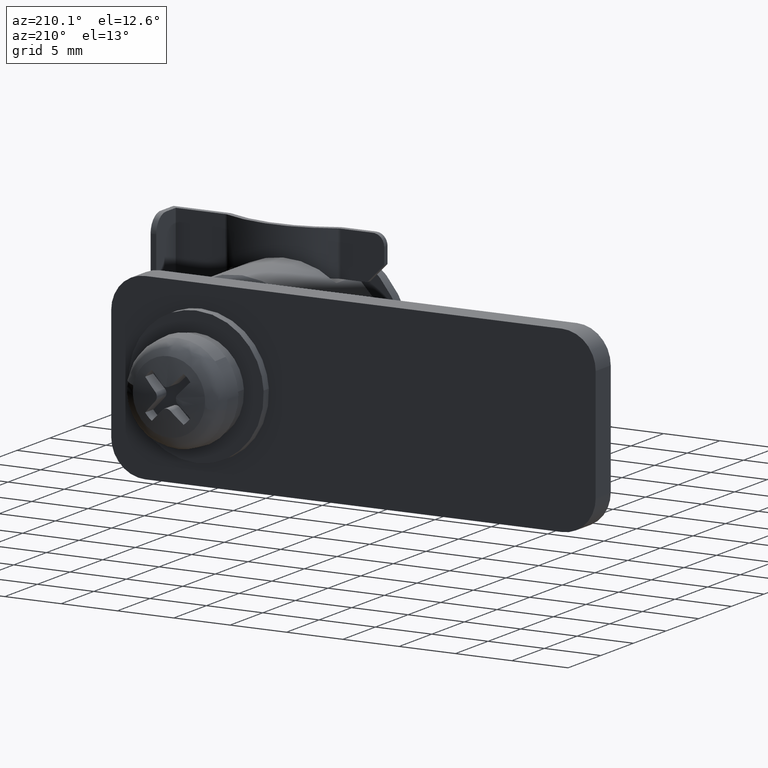
[diagram: clean part render]
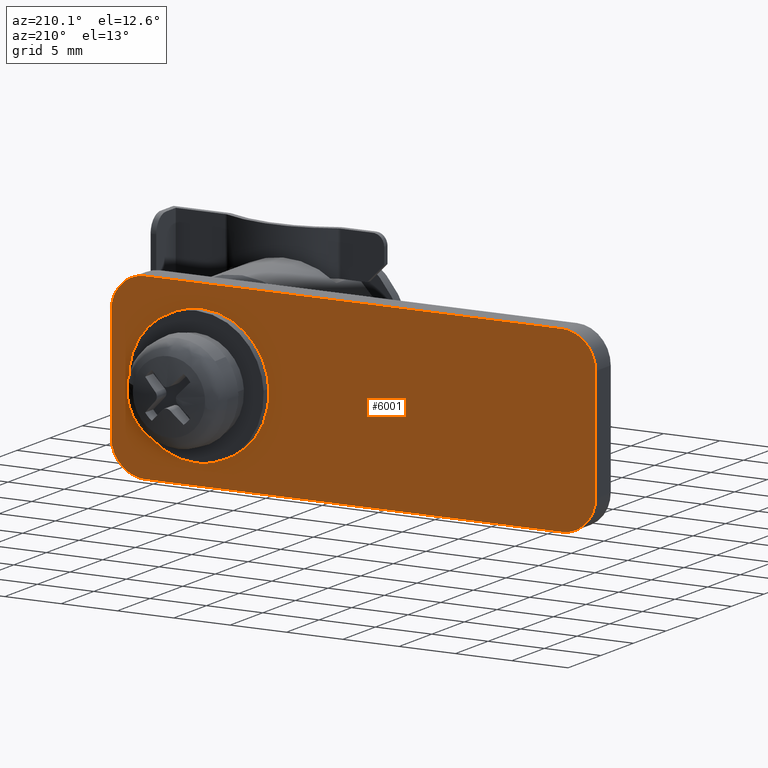
[diagram: same view with one face highlighted and labeled with its STEP entity id]
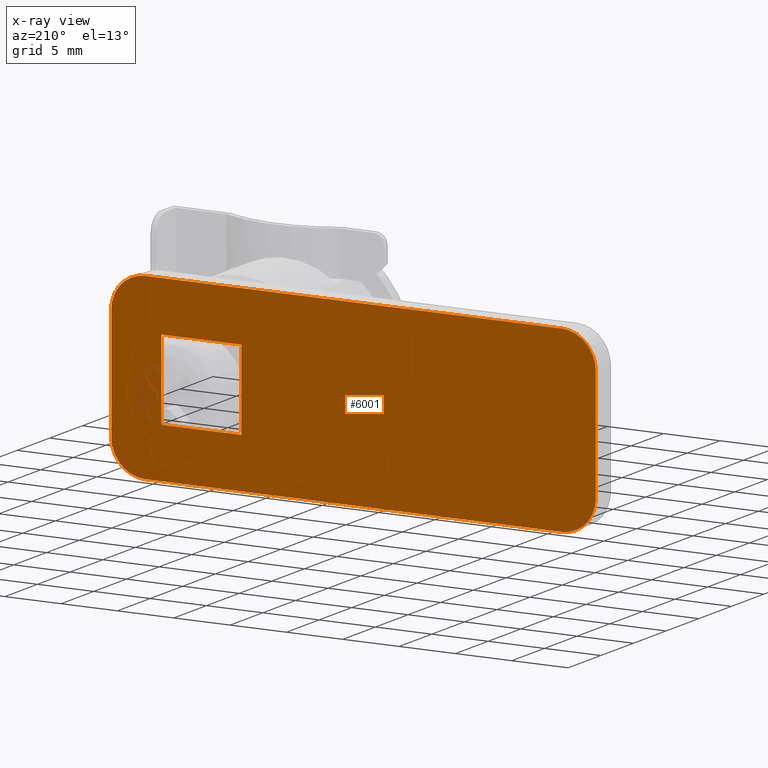
[diagram: x-ray of the same camera — body ghosted, the highlighted face saturated]
A machine part, auxiliary view. The second image highlights one B-rep face of the part: STEP entity #6001.
The next image is the same camera in x-ray: the body ghosted, the highlighted face saturated — about 1% of this face is hidden behind the body in this view.
In plain terms, the highlighted face is a freeform B-spline surface patch.
Its self-contained STEP definition (entity closure, byte-faithful):
#5876=CARTESIAN_POINT('',(-37.147849916657663,19.899999999999999,8.799199968988896));
#5877=CARTESIAN_POINT('',(10.147851070007530,19.899999999999999,8.799199968988896));
#5878=CARTESIAN_POINT('',(-37.147849916657663,19.899999999999999,-8.799200398142338));
#5879=CARTESIAN_POINT('',(10.147851070007530,19.899999999999999,-8.799200398142338));
#5880=B_SPLINE_SURFACE_WITH_KNOTS('',1,1,((#5876,#5878),(#5877,#5879)),.UNSPECIFIED.,.F.,.F.,.U.,(2,2),(2,2),(0.0,47.295700986665203),(0.0,17.598400367131230),.UNSPECIFIED.);
#5881=CARTESIAN_POINT('',(-32.0,19.899999999999999,-8.0));
#5882=VERTEX_POINT('',#5881);
#5883=CARTESIAN_POINT('',(5.0,19.899999999999999,-8.0));
#5884=VERTEX_POINT('',#5883);
#5885=CARTESIAN_POINT('',(-32.0,19.899999999999999,-8.0));
#5886=CARTESIAN_POINT('',(5.0,19.899999999999999,-8.0));
#5887=QUASI_UNIFORM_CURVE('',1,(#5885,#5886),.UNSPECIFIED.,.F.,.U.);
#5888=EDGE_CURVE('',#5882,#5884,#5887,.T.);
#5889=ORIENTED_EDGE('',*,*,#5888,.F.);
#5890=CARTESIAN_POINT('',(-35.0,19.899999999999999,-5.0));
#5891=VERTEX_POINT('',#5890);
#5892=CARTESIAN_POINT('',(-35.0,19.899999999999999,-5.0));
#5893=CARTESIAN_POINT('',(-34.999999999999993,19.900000000000006,-8.0));
#5894=CARTESIAN_POINT('',(-32.0,19.899999999999999,-8.0));
#5902=(BOUNDED_CURVE()B_SPLINE_CURVE(2,(#5892,#5893,#5894),.UNSPECIFIED.,.F.,.U.)CURVE()GEOMETRIC_REPRESENTATION_ITEM()QUASI_UNIFORM_CURVE()RATIONAL_B_SPLINE_CURVE((1.0,0.707106781186548,1.0))REPRESENTATION_ITEM(''));
#5903=EDGE_CURVE('',#5891,#5882,#5902,.T.);
#5904=ORIENTED_EDGE('',*,*,#5903,.F.);
#5905=CARTESIAN_POINT('',(-35.0,19.899999999999999,5.000001151917320));
#5906=VERTEX_POINT('',#5905);
#5907=CARTESIAN_POINT('',(-35.0,19.899999999999999,5.000001151917320));
#5908=CARTESIAN_POINT('',(-35.0,19.899999999999999,-5.0));
#5909=QUASI_UNIFORM_CURVE('',1,(#5907,#5908),.UNSPECIFIED.,.F.,.U.);
#5910=EDGE_CURVE('',#5906,#5891,#5909,.T.);
#5911=ORIENTED_EDGE('',*,*,#5910,.F.);
#5912=CARTESIAN_POINT('',(-32.0,19.899999999999999,8.0));
#5913=VERTEX_POINT('',#5912);
#5914=CARTESIAN_POINT('',(-32.0,19.899999999999999,8.0));
#5915=CARTESIAN_POINT('',(-34.999998848082896,19.900000000000006,8.0));
#5916=CARTESIAN_POINT('',(-35.0,19.899999999999999,5.000001151917320));
#5924=(BOUNDED_CURVE()B_SPLINE_CURVE(2,(#5914,#5915,#5916),.UNSPECIFIED.,.F.,.U.)CURVE()GEOMETRIC_REPRESENTATION_ITEM()QUASI_UNIFORM_CURVE()RATIONAL_B_SPLINE_CURVE((1.0,0.707106916941292,1.0))REPRESENTATION_ITEM(''));
#5925=EDGE_CURVE('',#5913,#5906,#5924,.T.);
#5926=ORIENTED_EDGE('',*,*,#5925,.F.);
#5927=CARTESIAN_POINT('',(5.0,19.899999999999999,8.0));
#5928=VERTEX_POINT('',#5927);
#5929=CARTESIAN_POINT('',(5.0,19.899999999999999,8.0));
#5930=CARTESIAN_POINT('',(-32.0,19.899999999999999,8.0));
#5931=QUASI_UNIFORM_CURVE('',1,(#5929,#5930),.UNSPECIFIED.,.F.,.U.);
#5932=EDGE_CURVE('',#5928,#5913,#5931,.T.);
#5933=ORIENTED_EDGE('',*,*,#5932,.F.);
#5934=CARTESIAN_POINT('',(8.0,19.899999999999999,5.0));
#5935=VERTEX_POINT('',#5934);
#5936=CARTESIAN_POINT('',(8.0,19.899999999999999,5.0));
#5937=CARTESIAN_POINT('',(8.0,19.900000000000006,8.0));
#5938=CARTESIAN_POINT('',(5.0,19.899999999999999,8.0));
#5946=(BOUNDED_CURVE()B_SPLINE_CURVE(2,(#5936,#5937,#5938),.UNSPECIFIED.,.F.,.U.)CURVE()GEOMETRIC_REPRESENTATION_ITEM()QUASI_UNIFORM_CURVE()RATIONAL_B_SPLINE_CURVE((1.0,0.707106781186548,1.0))REPRESENTATION_ITEM(''));
#5947=EDGE_CURVE('',#5935,#5928,#5946,.T.);
#5948=ORIENTED_EDGE('',*,*,#5947,.F.);
#5949=CARTESIAN_POINT('',(8.0,19.899999999999999,-5.0));
#5950=VERTEX_POINT('',#5949);
#5951=CARTESIAN_POINT('',(8.0,19.899999999999999,-5.0));
#5952=CARTESIAN_POINT('',(8.0,19.899999999999999,5.0));
#5953=QUASI_UNIFORM_CURVE('',1,(#5951,#5952),.UNSPECIFIED.,.F.,.U.);
#5954=EDGE_CURVE('',#5950,#5935,#5953,.T.);
#5955=ORIENTED_EDGE('',*,*,#5954,.F.);
#5956=CARTESIAN_POINT('',(5.0,19.899999999999999,-8.0));
#5957=CARTESIAN_POINT('',(8.0,19.900000000000006,-8.0));
#5958=CARTESIAN_POINT('',(8.0,19.899999999999999,-5.0));
#5966=(BOUNDED_CURVE()B_SPLINE_CURVE(2,(#5956,#5957,#5958),.UNSPECIFIED.,.F.,.U.)CURVE()GEOMETRIC_REPRESENTATION_ITEM()QUASI_UNIFORM_CURVE()RATIONAL_B_SPLINE_CURVE((1.0,0.707106781186548,1.0))REPRESENTATION_ITEM(''));
#5967=EDGE_CURVE('',#5884,#5950,#5966,.T.);
#5968=ORIENTED_EDGE('',*,*,#5967,.F.);
#5969=EDGE_LOOP('',(#5889,#5904,#5911,#5926,#5933,#5948,#5955,#5968));
#5970=FACE_OUTER_BOUND('',#5969,.T.);
#5971=CARTESIAN_POINT('',(3.550000000000000,19.899999999999999,3.550000000000000));
#5972=VERTEX_POINT('',#5971);
#5973=CARTESIAN_POINT('',(3.550000000000000,19.899999999999999,-3.550000000000000));
#5974=VERTEX_POINT('',#5973);
#5975=CARTESIAN_POINT('',(3.550000000000000,19.899999999999999,3.550000000000000));
#5976=CARTESIAN_POINT('',(3.550000000000000,19.899999999999999,-3.550000000000000));
#5977=QUASI_UNIFORM_CURVE('',1,(#5975,#5976),.UNSPECIFIED.,.F.,.U.);
#5978=EDGE_CURVE('',#5972,#5974,#5977,.T.);
#5979=ORIENTED_EDGE('',*,*,#5978,.F.);
#5980=CARTESIAN_POINT('',(-3.550000000000000,19.899999999999999,3.550000000000000));
#5981=VERTEX_POINT('',#5980);
#5982=CARTESIAN_POINT('',(-3.550000000000000,19.899999999999999,3.550000000000000));
#5983=CARTESIAN_POINT('',(3.550000000000000,19.899999999999999,3.550000000000000));
#5984=QUASI_UNIFORM_CURVE('',1,(#5982,#5983),.UNSPECIFIED.,.F.,.U.);
#5985=EDGE_CURVE('',#5981,#5972,#5984,.T.);
#5986=ORIENTED_EDGE('',*,*,#5985,.F.);
#5987=CARTESIAN_POINT('',(-3.550000000000000,19.899999999999999,-3.550000000000000));
#5988=VERTEX_POINT('',#5987);
#5989=CARTESIAN_POINT('',(-3.550000000000000,19.899999999999999,-3.550000000000000));
#5990=CARTESIAN_POINT('',(-3.550000000000000,19.899999999999999,3.550000000000000));
#5991=QUASI_UNIFORM_CURVE('',1,(#5989,#5990),.UNSPECIFIED.,.F.,.U.);
#5992=EDGE_CURVE('',#5988,#5981,#5991,.T.);
#5993=ORIENTED_EDGE('',*,*,#5992,.F.);
#5994=CARTESIAN_POINT('',(3.550000000000000,19.899999999999999,-3.550000000000000));
#5995=CARTESIAN_POINT('',(-3.550000000000000,19.899999999999999,-3.550000000000000));
#5996=QUASI_UNIFORM_CURVE('',1,(#5994,#5995),.UNSPECIFIED.,.F.,.U.);
#5997=EDGE_CURVE('',#5974,#5988,#5996,.T.);
#5998=ORIENTED_EDGE('',*,*,#5997,.F.);
#5999=EDGE_LOOP('',(#5979,#5986,#5993,#5998));
#6000=FACE_BOUND('',#5999,.T.);
#6001=ADVANCED_FACE('',(#5970,#6000),#5880,.T.);